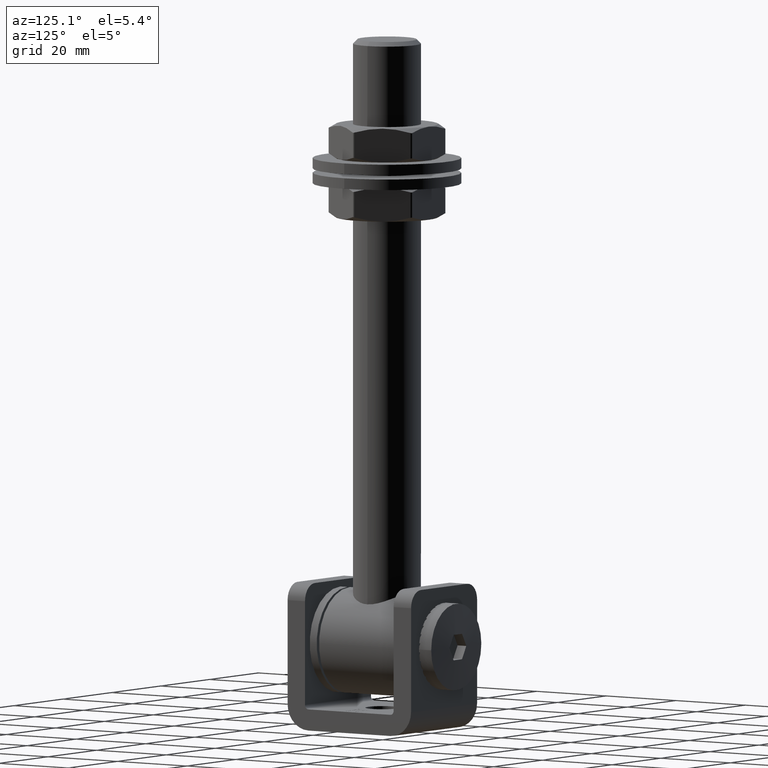
[diagram: clean part render]
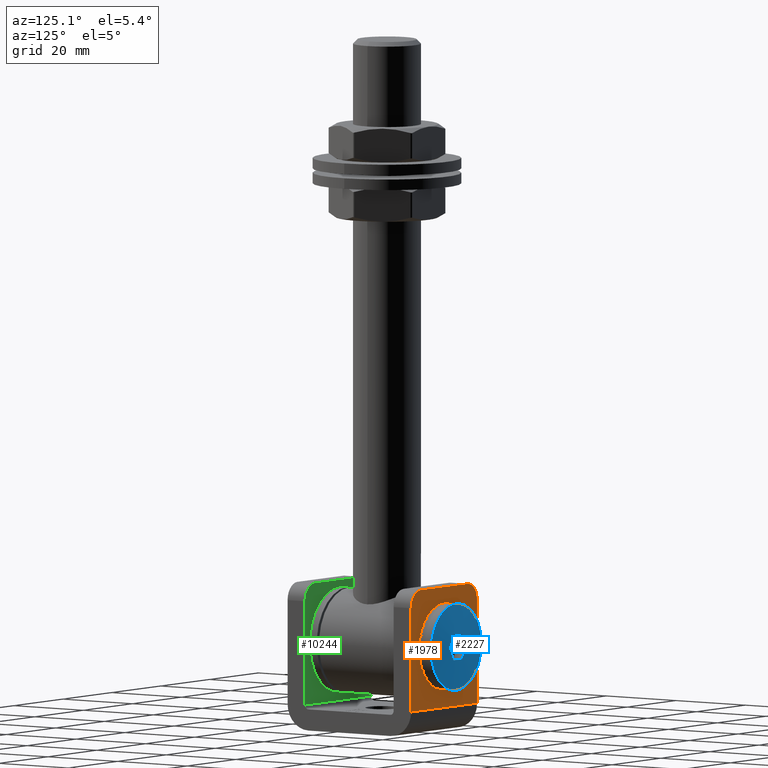
[diagram: same view with three faces highlighted in distinct colors, each labeled with its STEP entity id]
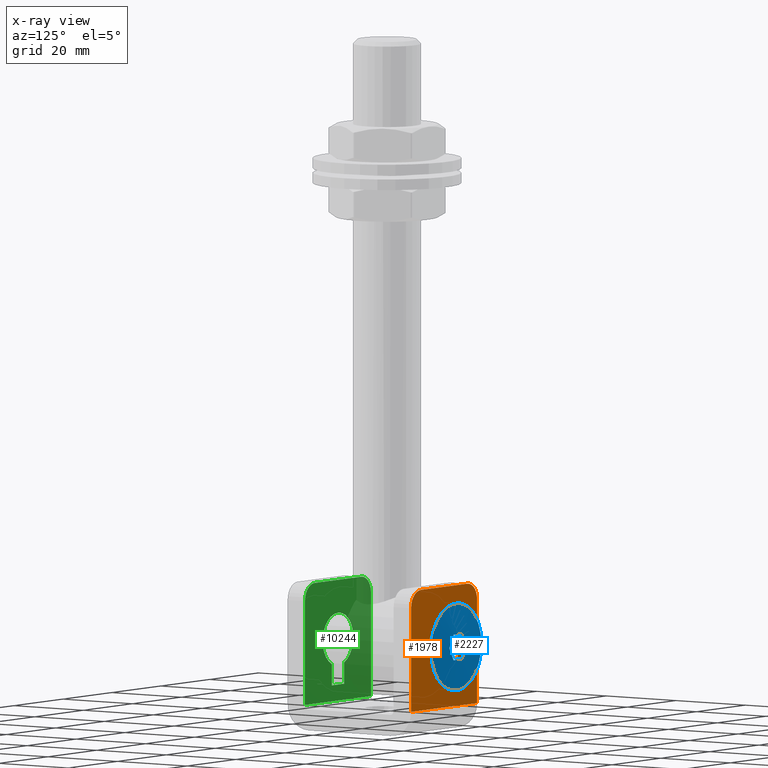
[diagram: x-ray of the same camera — body ghosted, the three highlighted faces saturated]
A machine part, auxiliary view with three faces highlighted in distinct colors.
The next image is the same camera in x-ray (body ghosted, the three faces saturated) — at least one of them is partly hidden behind the body in this view.
Their STEP definitions:

[orange] entity #1978 — the highlighted planar face has unit normal (0, -1, 0).
#480 = DIRECTION ( 'NONE',  ( -0.000000000000000000, -0.000000000000000000, 1.000000000000000000 ) ) ;
#633 = ORIENTED_EDGE ( 'NONE', *, *, #7577, .T. ) ;
#703 = CARTESIAN_POINT ( 'NONE',  ( 0.000000000000000000, 17.75000000000000000, 0.7500000000000006661 ) ) ;
#900 = FACE_OUTER_BOUND ( 'NONE', #7077, .T. ) ;
#1340 = VERTEX_POINT ( 'NONE', #14725 ) ;
#1576 = VERTEX_POINT ( 'NONE', #16867 ) ;
#1941 = ORIENTED_EDGE ( 'NONE', *, *, #3935, .F. ) ;
#1978 = ADVANCED_FACE ( 'NONE', ( #12871, #900 ), #11758, .F. ) ;
#2551 = CARTESIAN_POINT ( 'NONE',  ( 9.500000000000000000, 17.75000000000000000, 10.75000000000000000 ) ) ;
#2938 = CIRCLE ( 'NONE', #9075, 4.000000000000000000 ) ;
#2962 = DIRECTION ( 'NONE',  ( -1.000000000000000000, 0.000000000000000000, 0.000000000000000000 ) ) ;
#2972 = DIRECTION ( 'NONE',  ( 0.000000000000000000, -1.000000000000000000, 0.000000000000000000 ) ) ;
#3823 = DIRECTION ( 'NONE',  ( -1.000000000000000000, -0.000000000000000000, -0.000000000000000000 ) ) ;
#3935 = EDGE_CURVE ( 'NONE', #13552, #13552, #13363, .T. ) ;
#4053 = ORIENTED_EDGE ( 'NONE', *, *, #15634, .T. ) ;
#4319 = CARTESIAN_POINT ( 'NONE',  ( 0.000000000000000000, 17.75000000000000000, 7.000000000000000888 ) ) ;
#4946 = VERTEX_POINT ( 'NONE', #18454 ) ;
#5716 = DIRECTION ( 'NONE',  ( -0.000000000000000000, 1.000000000000000000, -0.000000000000000000 ) ) ;
#5992 = DIRECTION ( 'NONE',  ( 0.000000000000000000, 0.000000000000000000, -1.000000000000000000 ) ) ;
#6130 = DIRECTION ( 'NONE',  ( -0.000000000000000000, -0.000000000000000000, 1.000000000000000000 ) ) ;
#7077 = EDGE_LOOP ( 'NONE', ( #633, #4053, #9484, #16115, #7108, #9384 ) ) ;
#7108 = ORIENTED_EDGE ( 'NONE', *, *, #19001, .F. ) ;
#7267 = VECTOR ( 'NONE', #6130, 1000.000000000000000 ) ;
#7577 = EDGE_CURVE ( 'NONE', #1576, #16137, #12964, .T. ) ;
#7703 = LINE ( 'NONE', #17901, #10675 ) ;
#8048 = CARTESIAN_POINT ( 'NONE',  ( 13.50000000000000000, 17.75000000000000000, 14.75000000000000178 ) ) ;
#8640 = VERTEX_POINT ( 'NONE', #18235 ) ;
#8953 = VERTEX_POINT ( 'NONE', #18063 ) ;
#9075 = AXIS2_PLACEMENT_3D ( 'NONE', #12965, #21948, #5992 ) ;
#9384 = ORIENTED_EDGE ( 'NONE', *, *, #10217, .T. ) ;
#9484 = ORIENTED_EDGE ( 'NONE', *, *, #14451, .F. ) ;
#9807 = AXIS2_PLACEMENT_3D ( 'NONE', #2551, #5716, #17936 ) ;
#9914 = CARTESIAN_POINT ( 'NONE',  ( 13.50000000000000000, 17.75000000000000000, -13.75000000000000711 ) ) ;
#10217 = EDGE_CURVE ( 'NONE', #1340, #1576, #15870, .T. ) ;
#10675 = VECTOR ( 'NONE', #480, 1000.000000000000000 ) ;
#11758 = PLANE ( 'NONE',  #21965 ) ;
#12871 = FACE_BOUND ( 'NONE', #15065, .T. ) ;
#12964 = LINE ( 'NONE', #14232, #7267 ) ;
#12965 = CARTESIAN_POINT ( 'NONE',  ( -9.500000000000000000, 17.75000000000000000, 10.75000000000000000 ) ) ;
#13135 = DIRECTION ( 'NONE',  ( 0.000000000000000000, -0.000000000000000000, -1.000000000000000000 ) ) ;
#13363 = CIRCLE ( 'NONE', #17362, 6.250000000000000000 ) ;
#13552 = VERTEX_POINT ( 'NONE', #4319 ) ;
#14232 = CARTESIAN_POINT ( 'NONE',  ( -13.50000000000000000, 17.75000000000000000, 14.75000000000000178 ) ) ;
#14451 = EDGE_CURVE ( 'NONE', #8953, #8640, #18943, .T. ) ;
#14725 = CARTESIAN_POINT ( 'NONE',  ( 13.50000000000000000, 17.75000000000000000, -13.75000000000000711 ) ) ;
#15065 = EDGE_LOOP ( 'NONE', ( #1941 ) ) ;
#15326 = VECTOR ( 'NONE', #2962, 1000.000000000000000 ) ;
#15373 = CIRCLE ( 'NONE', #9807, 4.000000000000000000 ) ;
#15634 = EDGE_CURVE ( 'NONE', #16137, #8640, #2938, .T. ) ;
#15870 = LINE ( 'NONE', #9914, #15326 ) ;
#16115 = ORIENTED_EDGE ( 'NONE', *, *, #16565, .T. ) ;
#16137 = VERTEX_POINT ( 'NONE', #19771 ) ;
#16565 = EDGE_CURVE ( 'NONE', #8953, #4946, #15373, .T. ) ;
#16867 = CARTESIAN_POINT ( 'NONE',  ( -13.50000000000000000, 17.75000000000000000, -13.75000000000000711 ) ) ;
#17362 = AXIS2_PLACEMENT_3D ( 'NONE', #703, #18128, #21514 ) ;
#17901 = CARTESIAN_POINT ( 'NONE',  ( 13.50000000000000000, 17.75000000000000000, 14.75000000000000178 ) ) ;
#17936 = DIRECTION ( 'NONE',  ( 0.000000000000000000, 0.000000000000000000, -1.000000000000000000 ) ) ;
#18063 = CARTESIAN_POINT ( 'NONE',  ( 9.500000000000000000, 17.75000000000000000, 14.75000000000000178 ) ) ;
#18128 = DIRECTION ( 'NONE',  ( 0.000000000000000000, 1.000000000000000000, 0.000000000000000000 ) ) ;
#18235 = CARTESIAN_POINT ( 'NONE',  ( -9.500000000000000000, 17.75000000000000000, 14.75000000000000178 ) ) ;
#18454 = CARTESIAN_POINT ( 'NONE',  ( 13.50000000000000000, 17.75000000000000000, 10.75000000000000000 ) ) ;
#18943 = LINE ( 'NONE', #19307, #20550 ) ;
#19001 = EDGE_CURVE ( 'NONE', #1340, #4946, #7703, .T. ) ;
#19307 = CARTESIAN_POINT ( 'NONE',  ( 13.50000000000000000, 17.75000000000000000, 14.75000000000000178 ) ) ;
#19771 = CARTESIAN_POINT ( 'NONE',  ( -13.50000000000000000, 17.75000000000000000, 10.75000000000000000 ) ) ;
#20550 = VECTOR ( 'NONE', #3823, 1000.000000000000000 ) ;
#21514 = DIRECTION ( 'NONE',  ( 0.000000000000000000, 0.000000000000000000, 1.000000000000000000 ) ) ;
#21948 = DIRECTION ( 'NONE',  ( -0.000000000000000000, 1.000000000000000000, -0.000000000000000000 ) ) ;
#21965 = AXIS2_PLACEMENT_3D ( 'NONE', #8048, #2972, #13135 ) ;

[blue] entity #2227 — the highlighted spherical surface has radius 105.312 mm.
#165 = ORIENTED_EDGE ( 'NONE', *, *, #1569, .F. ) ;
#727 = CARTESIAN_POINT ( 'NONE',  ( -1.732050807568874307, 18.94301128682049296, -2.999999999999998668 ) ) ;
#1321 = DIRECTION ( 'NONE',  ( -0.5000000000000001110, -6.301508131676954652E-14, 0.8660254037844385966 ) ) ;
#1450 = CARTESIAN_POINT ( 'NONE',  ( 1.404957346741441077E-14, -86.31250000000021316, 3.000000000000000000 ) ) ;
#1536 = CIRCLE ( 'NONE', #16355, 105.2697613574289477 ) ;
#1569 = EDGE_CURVE ( 'NONE', #15685, #4770, #4785, .T. ) ;
#1911 = CIRCLE ( 'NONE', #3275, 10.25000000000000000 ) ;
#2227 = ADVANCED_FACE ( 'NONE', ( #18552, #11214 ), #13964, .T. ) ;
#3275 = AXIS2_PLACEMENT_3D ( 'NONE', #22222, #4112, #9378 ) ;
#3414 = DIRECTION ( 'NONE',  ( 1.251928832280966435E-16, 0.000000000000000000, 1.000000000000000000 ) ) ;
#3434 = AXIS2_PLACEMENT_3D ( 'NONE', #22235, #13545, #1321 ) ;
#3543 = AXIS2_PLACEMENT_3D ( 'NONE', #4953, #3414, #4883 ) ;
#3895 = AXIS2_PLACEMENT_3D ( 'NONE', #14317, #21231, #10889 ) ;
#4112 = DIRECTION ( 'NONE',  ( -1.252009581588831962E-16, -1.000000000000000000, -0.000000000000000000 ) ) ;
#4407 = CARTESIAN_POINT ( 'NONE',  ( 1.732050807568878970, 18.94301128682049296, -3.000000000000000000 ) ) ;
#4577 = ORIENTED_EDGE ( 'NONE', *, *, #10289, .F. ) ;
#4636 = CIRCLE ( 'NONE', #3895, 105.2697613574289761 ) ;
#4770 = VERTEX_POINT ( 'NONE', #9361 ) ;
#4785 = CIRCLE ( 'NONE', #18036, 105.2697613574289761 ) ;
#4883 = DIRECTION ( 'NONE',  ( -1.000000000000000000, -6.301508131676955914E-14, 1.235912944235804618E-16 ) ) ;
#4929 = ORIENTED_EDGE ( 'NONE', *, *, #14291, .F. ) ;
#4953 = CARTESIAN_POINT ( 'NONE',  ( 1.367399481773012244E-14, -86.31250000000021316, -3.000000000000000000 ) ) ;
#5669 = ORIENTED_EDGE ( 'NONE', *, *, #8240, .F. ) ;
#6036 = CARTESIAN_POINT ( 'NONE',  ( 1.404957346741441077E-14, -86.31250000000021316, 0.000000000000000000 ) ) ;
#6235 = EDGE_CURVE ( 'NONE', #19462, #20188, #12177, .T. ) ;
#6501 = DIRECTION ( 'NONE',  ( 0.8660254037844387076, -0.000000000000000000, -0.5000000000000002220 ) ) ;
#6715 = CARTESIAN_POINT ( 'NONE',  ( -2.598076211353310239, -86.31250000000021316, 1.500000000000005773 ) ) ;
#6988 = EDGE_LOOP ( 'NONE', ( #18034 ) ) ;
#7999 = EDGE_CURVE ( 'NONE', #4770, #19462, #1536, .T. ) ;
#8089 = VERTEX_POINT ( 'NONE', #14668 ) ;
#8103 = CARTESIAN_POINT ( 'NONE',  ( 3.464101615137757495, 18.94301128682049296, -1.084202172485504434E-15 ) ) ;
#8240 = EDGE_CURVE ( 'NONE', #20188, #20082, #4636, .T. ) ;
#8373 = VERTEX_POINT ( 'NONE', #727 ) ;
#8880 = ORIENTED_EDGE ( 'NONE', *, *, #6235, .F. ) ;
#9361 = CARTESIAN_POINT ( 'NONE',  ( -1.732050807568874529, 18.94301128682049296, 3.000000000000000000 ) ) ;
#9378 = DIRECTION ( 'NONE',  ( 1.000000000000000000, 0.000000000000000000, 0.000000000000000000 ) ) ;
#9638 = DIRECTION ( 'NONE',  ( 1.000000000000000000, -1.317772136053595696E-16, 0.000000000000000000 ) ) ;
#9957 = DIRECTION ( 'NONE',  ( 0.5000000000000001110, -6.301508131676953390E-14, 0.8660254037844384856 ) ) ;
#9972 = DIRECTION ( 'NONE',  ( 0.4999999999999997780, -6.301508131676954652E-14, -0.8660254037844387076 ) ) ;
#10196 = DIRECTION ( 'NONE',  ( -0.8660254037844388186, -0.000000000000000000, -0.4999999999999998890 ) ) ;
#10289 = EDGE_CURVE ( 'NONE', #20082, #8373, #16356, .T. ) ;
#10889 = DIRECTION ( 'NONE',  ( -0.5000000000000002220, -6.301508131676953390E-14, -0.8660254037844384856 ) ) ;
#11214 = FACE_OUTER_BOUND ( 'NONE', #6988, .T. ) ;
#12177 = CIRCLE ( 'NONE', #21542, 105.2697613574289619 ) ;
#12489 = ORIENTED_EDGE ( 'NONE', *, *, #7999, .F. ) ;
#12803 = EDGE_CURVE ( 'NONE', #8089, #8089, #1911, .T. ) ;
#12867 = DIRECTION ( 'NONE',  ( 1.000000000000000000, -6.301508131676955914E-14, 0.000000000000000000 ) ) ;
#13545 = DIRECTION ( 'NONE',  ( 0.8660254037844387076, 0.000000000000000000, 0.5000000000000001110 ) ) ;
#13964 = SPHERICAL_SURFACE ( 'NONE', #20051, 105.3125000000001990 ) ;
#14291 = EDGE_CURVE ( 'NONE', #8373, #15685, #19490, .T. ) ;
#14317 = CARTESIAN_POINT ( 'NONE',  ( 2.598076211353320453, -86.31250000000021316, -1.499999999999995781 ) ) ;
#14668 = CARTESIAN_POINT ( 'NONE',  ( 10.25000000000000178, 18.49999999999998934, 0.000000000000000000 ) ) ;
#14901 = EDGE_LOOP ( 'NONE', ( #5669, #8880, #12489, #165, #4929, #4577 ) ) ;
#15313 = CARTESIAN_POINT ( 'NONE',  ( -3.464101615137752166, 18.94301128682049296, 4.336808689942017736E-16 ) ) ;
#15685 = VERTEX_POINT ( 'NONE', #15313 ) ;
#16355 = AXIS2_PLACEMENT_3D ( 'NONE', #1450, #21460, #12867 ) ;
#16356 = CIRCLE ( 'NONE', #3543, 105.2697613574289477 ) ;
#18034 = ORIENTED_EDGE ( 'NONE', *, *, #12803, .F. ) ;
#18036 = AXIS2_PLACEMENT_3D ( 'NONE', #6715, #6501, #9957 ) ;
#18201 = DIRECTION ( 'NONE',  ( -0.000000000000000000, 0.000000000000000000, 1.000000000000000000 ) ) ;
#18552 = FACE_OUTER_BOUND ( 'NONE', #14901, .T. ) ;
#19462 = VERTEX_POINT ( 'NONE', #19526 ) ;
#19490 = CIRCLE ( 'NONE', #3434, 105.2697613574289619 ) ;
#19526 = CARTESIAN_POINT ( 'NONE',  ( 1.732050807568879858, 18.94301128682049296, 3.000000000000000444 ) ) ;
#20051 = AXIS2_PLACEMENT_3D ( 'NONE', #6036, #18201, #9638 ) ;
#20082 = VERTEX_POINT ( 'NONE', #4407 ) ;
#20188 = VERTEX_POINT ( 'NONE', #8103 ) ;
#20324 = CARTESIAN_POINT ( 'NONE',  ( 2.598076211353321341, -86.31250000000021316, 1.499999999999994449 ) ) ;
#21231 = DIRECTION ( 'NONE',  ( -0.8660254037844387076, -0.000000000000000000, 0.5000000000000003331 ) ) ;
#21460 = DIRECTION ( 'NONE',  ( 0.000000000000000000, -0.000000000000000000, -1.000000000000000000 ) ) ;
#21542 = AXIS2_PLACEMENT_3D ( 'NONE', #20324, #10196, #9972 ) ;
#22222 = CARTESIAN_POINT ( 'NONE',  ( 2.316217725939337712E-15, 18.49999999999998934, 0.000000000000000000 ) ) ;
#22235 = CARTESIAN_POINT ( 'NONE',  ( -2.598076211353309795, -86.31250000000021316, -1.500000000000004885 ) ) ;

[green] entity #10244 — the highlighted planar face has unit normal (0, -1, 0).
#53 = EDGE_CURVE ( 'NONE', #8399, #12363, #5629, .T. ) ;
#115 = EDGE_LOOP ( 'NONE', ( #20783, #20057, #11008, #9198, #21830, #4467 ) ) ;
#359 = EDGE_CURVE ( 'NONE', #20252, #866, #1765, .T. ) ;
#551 = CIRCLE ( 'NONE', #6911, 4.000000000000000000 ) ;
#554 = LINE ( 'NONE', #13651, #2184 ) ;
#590 = ORIENTED_EDGE ( 'NONE', *, *, #12671, .T. ) ;
#701 = DIRECTION ( 'NONE',  ( 0.000000000000000000, 0.000000000000000000, -1.000000000000000000 ) ) ;
#866 = VERTEX_POINT ( 'NONE', #11147 ) ;
#1423 = DIRECTION ( 'NONE',  ( 0.000000000000000000, 0.000000000000000000, 1.000000000000000000 ) ) ;
#1765 = LINE ( 'NONE', #21243, #18297 ) ;
#2184 = VECTOR ( 'NONE', #20690, 1000.000000000000000 ) ;
#2257 = DIRECTION ( 'NONE',  ( 0.000000000000000000, 0.000000000000000000, 1.000000000000000000 ) ) ;
#2350 = AXIS2_PLACEMENT_3D ( 'NONE', #13658, #15379, #10140 ) ;
#2948 = DIRECTION ( 'NONE',  ( -0.000000000000000000, 1.000000000000000000, -0.000000000000000000 ) ) ;
#3263 = CARTESIAN_POINT ( 'NONE',  ( -9.500000000000000000, -12.74999999999999822, 10.75000000000000000 ) ) ;
#3303 = EDGE_CURVE ( 'NONE', #20501, #16191, #22316, .T. ) ;
#3738 = AXIS2_PLACEMENT_3D ( 'NONE', #19228, #5476, #17416 ) ;
#4324 = LINE ( 'NONE', #8539, #16241 ) ;
#4467 = ORIENTED_EDGE ( 'NONE', *, *, #5377, .T. ) ;
#4761 = CARTESIAN_POINT ( 'NONE',  ( 2.499999999999999556, -12.74999999999999822, -4.978219618694800452 ) ) ;
#5366 = CARTESIAN_POINT ( 'NONE',  ( -13.50000000000000000, -12.74999999999999822, -13.75000000000000178 ) ) ;
#5377 = EDGE_CURVE ( 'NONE', #16387, #866, #551, .T. ) ;
#5476 = DIRECTION ( 'NONE',  ( 0.000000000000000000, -1.000000000000000000, 0.000000000000000000 ) ) ;
#5629 = LINE ( 'NONE', #9395, #11828 ) ;
#5682 = EDGE_CURVE ( 'NONE', #14635, #13359, #20851, .T. ) ;
#6693 = CARTESIAN_POINT ( 'NONE',  ( 9.500000000000000000, -12.74999999999999822, 14.75000000000000178 ) ) ;
#6911 = AXIS2_PLACEMENT_3D ( 'NONE', #21440, #11090, #701 ) ;
#7206 = CARTESIAN_POINT ( 'NONE',  ( -13.50000000000000000, -12.74999999999999822, -13.75000000000000178 ) ) ;
#8202 = FACE_BOUND ( 'NONE', #14872, .T. ) ;
#8399 = VERTEX_POINT ( 'NONE', #14735 ) ;
#8539 = CARTESIAN_POINT ( 'NONE',  ( 2.500000000000000444, -12.74999999999999822, -14.75000000000000355 ) ) ;
#8667 = EDGE_CURVE ( 'NONE', #16387, #16191, #17162, .T. ) ;
#9198 = ORIENTED_EDGE ( 'NONE', *, *, #3303, .T. ) ;
#9395 = CARTESIAN_POINT ( 'NONE',  ( 13.50000000000000000, -12.74999999999999822, -9.980000000000007532 ) ) ;
#9717 = ORIENTED_EDGE ( 'NONE', *, *, #14992, .T. ) ;
#9780 = AXIS2_PLACEMENT_3D ( 'NONE', #3263, #2948, #9819 ) ;
#9819 = DIRECTION ( 'NONE',  ( 0.000000000000000000, 0.000000000000000000, -1.000000000000000000 ) ) ;
#9898 = FACE_OUTER_BOUND ( 'NONE', #115, .T. ) ;
#10140 = DIRECTION ( 'NONE',  ( 0.000000000000000000, -0.000000000000000000, -1.000000000000000000 ) ) ;
#10212 = PLANE ( 'NONE',  #2350 ) ;
#10244 = ADVANCED_FACE ( 'NONE', ( #8202, #9898 ), #10212, .F. ) ;
#10387 = VECTOR ( 'NONE', #17536, 1000.000000000000000 ) ;
#10618 = ORIENTED_EDGE ( 'NONE', *, *, #5682, .T. ) ;
#11008 = ORIENTED_EDGE ( 'NONE', *, *, #15630, .T. ) ;
#11090 = DIRECTION ( 'NONE',  ( -0.000000000000000000, 1.000000000000000000, -0.000000000000000000 ) ) ;
#11147 = CARTESIAN_POINT ( 'NONE',  ( 13.50000000000000000, -12.74999999999999822, 10.74999999999999467 ) ) ;
#11828 = VECTOR ( 'NONE', #12985, 1000.000000000000000 ) ;
#12363 = VERTEX_POINT ( 'NONE', #19523 ) ;
#12575 = VECTOR ( 'NONE', #20107, 1000.000000000000000 ) ;
#12671 = EDGE_CURVE ( 'NONE', #13359, #8399, #554, .T. ) ;
#12726 = LINE ( 'NONE', #13501, #14580 ) ;
#12985 = DIRECTION ( 'NONE',  ( 1.000000000000000000, 0.000000000000000000, 0.000000000000000000 ) ) ;
#13359 = VERTEX_POINT ( 'NONE', #15182 ) ;
#13501 = CARTESIAN_POINT ( 'NONE',  ( -13.50000000000000000, -12.74999999999999822, -14.75000000000000178 ) ) ;
#13651 = CARTESIAN_POINT ( 'NONE',  ( -2.500000000000000444, -12.74999999999999822, -14.75000000000000000 ) ) ;
#13658 = CARTESIAN_POINT ( 'NONE',  ( 13.50000000000000000, -12.74999999999999822, -14.75000000000000178 ) ) ;
#14580 = VECTOR ( 'NONE', #1423, 1000.000000000000000 ) ;
#14635 = VERTEX_POINT ( 'NONE', #4761 ) ;
#14735 = CARTESIAN_POINT ( 'NONE',  ( -2.500000000000000000, -12.74999999999999822, -9.980000000000007532 ) ) ;
#14743 = LINE ( 'NONE', #5366, #10387 ) ;
#14872 = EDGE_LOOP ( 'NONE', ( #10618, #590, #15533, #9717 ) ) ;
#14992 = EDGE_CURVE ( 'NONE', #12363, #14635, #4324, .T. ) ;
#15182 = CARTESIAN_POINT ( 'NONE',  ( -2.499999999999999556, -12.74999999999999822, -4.978219618694800452 ) ) ;
#15379 = DIRECTION ( 'NONE',  ( 0.000000000000000000, -1.000000000000000000, 0.000000000000000000 ) ) ;
#15533 = ORIENTED_EDGE ( 'NONE', *, *, #53, .T. ) ;
#15630 = EDGE_CURVE ( 'NONE', #16526, #20501, #12726, .T. ) ;
#15740 = DIRECTION ( 'NONE',  ( -8.670530009976833916E-17, 0.000000000000000000, 1.000000000000000000 ) ) ;
#15862 = CARTESIAN_POINT ( 'NONE',  ( -13.50000000000000000, -12.74999999999999822, 10.74999999999999467 ) ) ;
#16191 = VERTEX_POINT ( 'NONE', #19996 ) ;
#16241 = VECTOR ( 'NONE', #15740, 1000.000000000000000 ) ;
#16387 = VERTEX_POINT ( 'NONE', #6693 ) ;
#16526 = VERTEX_POINT ( 'NONE', #7206 ) ;
#17162 = LINE ( 'NONE', #19969, #12575 ) ;
#17416 = DIRECTION ( 'NONE',  ( 0.000000000000000000, 0.000000000000000000, -1.000000000000000000 ) ) ;
#17536 = DIRECTION ( 'NONE',  ( -1.000000000000000000, 0.000000000000000000, 0.000000000000000000 ) ) ;
#18297 = VECTOR ( 'NONE', #2257, 1000.000000000000000 ) ;
#18944 = EDGE_CURVE ( 'NONE', #20252, #16526, #14743, .T. ) ;
#19228 = CARTESIAN_POINT ( 'NONE',  ( 0.000000000000000000, -12.74999999999999822, 0.7500000000000006661 ) ) ;
#19523 = CARTESIAN_POINT ( 'NONE',  ( 2.500000000000000000, -12.74999999999999822, -9.980000000000007532 ) ) ;
#19969 = CARTESIAN_POINT ( 'NONE',  ( 13.50000000000000000, -12.74999999999999822, 14.75000000000000178 ) ) ;
#19996 = CARTESIAN_POINT ( 'NONE',  ( -9.500000000000000000, -12.74999999999999822, 14.75000000000000178 ) ) ;
#20057 = ORIENTED_EDGE ( 'NONE', *, *, #18944, .T. ) ;
#20107 = DIRECTION ( 'NONE',  ( -1.000000000000000000, -0.000000000000000000, -0.000000000000000000 ) ) ;
#20154 = CARTESIAN_POINT ( 'NONE',  ( 13.50000000000000000, -12.74999999999999822, -13.75000000000000178 ) ) ;
#20252 = VERTEX_POINT ( 'NONE', #20154 ) ;
#20501 = VERTEX_POINT ( 'NONE', #15862 ) ;
#20690 = DIRECTION ( 'NONE',  ( -8.670530009976833916E-17, 0.000000000000000000, -1.000000000000000000 ) ) ;
#20783 = ORIENTED_EDGE ( 'NONE', *, *, #359, .F. ) ;
#20851 = CIRCLE ( 'NONE', #3738, 6.250000000000000000 ) ;
#21243 = CARTESIAN_POINT ( 'NONE',  ( 13.50000000000000000, -12.74999999999999822, -14.75000000000000178 ) ) ;
#21440 = CARTESIAN_POINT ( 'NONE',  ( 9.500000000000000000, -12.74999999999999822, 10.75000000000000000 ) ) ;
#21830 = ORIENTED_EDGE ( 'NONE', *, *, #8667, .F. ) ;
#22316 = CIRCLE ( 'NONE', #9780, 4.000000000000000000 ) ;